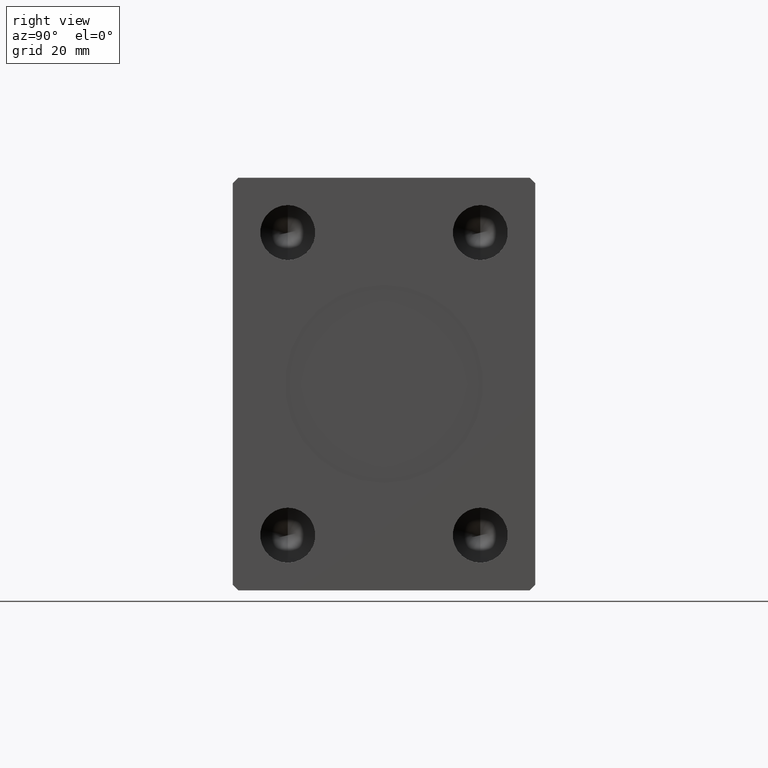
[diagram: clean part render]
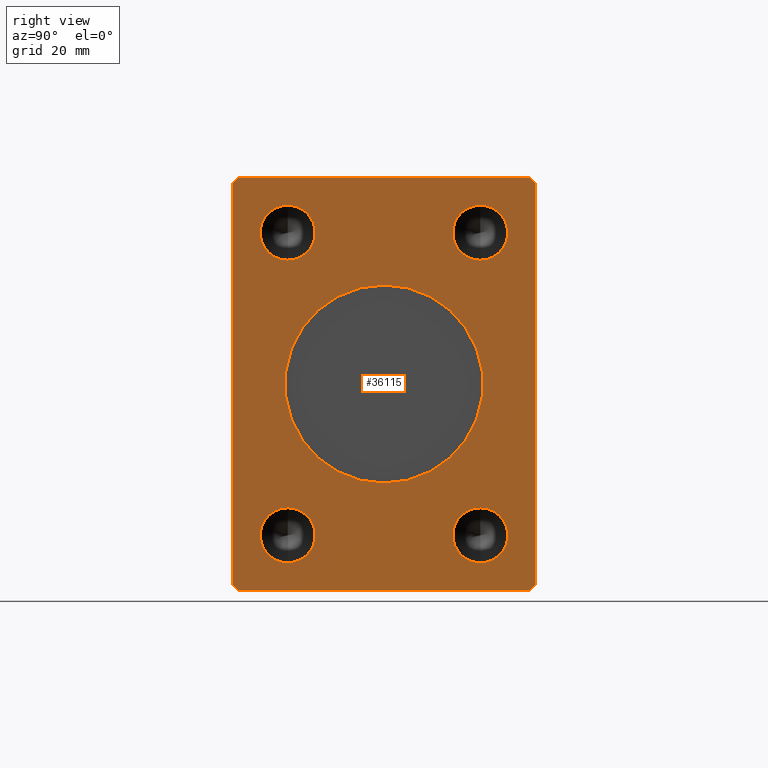
[diagram: same view with one face highlighted and labeled with its STEP entity id]
A machine part, right view. The second image highlights one B-rep face of the part: STEP entity #36115.
In plain terms, the highlighted planar face has unit normal (1, 0, 0).
Its self-contained STEP definition (entity closure, byte-faithful):
#16 = EDGE_CURVE ( 'NONE', #37858, #38289, #7254, .T. ) ;
#370 = VERTEX_POINT ( 'NONE', #2576 ) ;
#374 = CARTESIAN_POINT ( 'NONE',  ( 85.00000000000000000, -27.50000000000000355, -36.49999999999998579 ) ) ;
#713 = CARTESIAN_POINT ( 'NONE',  ( 85.00000000000000000, 26.50000000000000355, 37.50000000000000711 ) ) ;
#765 = DIRECTION ( 'NONE',  ( 0.000000000000000000, 0.7071067811865474617, 0.7071067811865474617 ) ) ;
#881 = AXIS2_PLACEMENT_3D ( 'NONE', #26466, #9509, #6167 ) ;
#988 = CARTESIAN_POINT ( 'NONE',  ( 85.00000000000000000, 17.50000000000000000, 32.50000000000000000 ) ) ;
#1284 = CARTESIAN_POINT ( 'NONE',  ( 85.00000000000000000, 26.50000000000000711, -37.49999999999999289 ) ) ;
#1599 = AXIS2_PLACEMENT_3D ( 'NONE', #33057, #38733, #21731 ) ;
#2338 = EDGE_CURVE ( 'NONE', #36524, #21167, #36487, .T. ) ;
#2526 = VERTEX_POINT ( 'NONE', #39345 ) ;
#2553 = FACE_BOUND ( 'NONE', #41140, .T. ) ;
#2567 = DIRECTION ( 'NONE',  ( 0.000000000000000000, 1.000000000000000000, 0.000000000000000000 ) ) ;
#2576 = CARTESIAN_POINT ( 'NONE',  ( 85.00000000000000000, -17.50000000000000000, -22.50000000000000000 ) ) ;
#2974 = EDGE_LOOP ( 'NONE', ( #6650, #42968 ) ) ;
#3344 = AXIS2_PLACEMENT_3D ( 'NONE', #35683, #39248, #42595 ) ;
#3708 = EDGE_CURVE ( 'NONE', #21167, #36524, #40073, .T. ) ;
#3836 = VECTOR ( 'NONE', #38309, 1000.000000000000114 ) ;
#4011 = DIRECTION ( 'NONE',  ( 0.000000000000000000, 0.000000000000000000, -1.000000000000000000 ) ) ;
#4060 = EDGE_CURVE ( 'NONE', #39470, #370, #35826, .T. ) ;
#4086 = ORIENTED_EDGE ( 'NONE', *, *, #16824, .T. ) ;
#4472 = AXIS2_PLACEMENT_3D ( 'NONE', #43001, #4850, #36092 ) ;
#4636 = CARTESIAN_POINT ( 'NONE',  ( 85.00000000000000000, -26.50000000000000711, 37.50000000000000711 ) ) ;
#4850 = DIRECTION ( 'NONE',  ( 1.000000000000000000, -0.000000000000000000, -0.000000000000000000 ) ) ;
#5529 = CARTESIAN_POINT ( 'NONE',  ( 85.00000000000000000, 17.50000000000000000, 27.50000000000000000 ) ) ;
#5691 = LINE ( 'NONE', #5923, #10064 ) ;
#5736 = CARTESIAN_POINT ( 'NONE',  ( 85.00000000000000000, 27.50000000000000355, 36.50000000000000711 ) ) ;
#5864 = EDGE_CURVE ( 'NONE', #18019, #27338, #22128, .T. ) ;
#5923 = CARTESIAN_POINT ( 'NONE',  ( 85.00000000000000000, -26.50000000000000355, -37.49999999999999289 ) ) ;
#5966 = VERTEX_POINT ( 'NONE', #40207 ) ;
#6167 = DIRECTION ( 'NONE',  ( 0.000000000000000000, 0.000000000000000000, -1.000000000000000000 ) ) ;
#6650 = ORIENTED_EDGE ( 'NONE', *, *, #25589, .F. ) ;
#6737 = DIRECTION ( 'NONE',  ( 0.000000000000000000, 0.000000000000000000, -1.000000000000000000 ) ) ;
#7206 = AXIS2_PLACEMENT_3D ( 'NONE', #37445, #31988, #15014 ) ;
#7233 = ORIENTED_EDGE ( 'NONE', *, *, #12309, .T. ) ;
#7254 = CIRCLE ( 'NONE', #32907, 18.00000000000000000 ) ;
#7571 = VECTOR ( 'NONE', #7580, 1000.000000000000000 ) ;
#7580 = DIRECTION ( 'NONE',  ( 0.000000000000000000, 4.752667057470705491E-17, -1.000000000000000000 ) ) ;
#7994 = EDGE_CURVE ( 'NONE', #2526, #12995, #31496, .T. ) ;
#8095 = CARTESIAN_POINT ( 'NONE',  ( 85.00000000000000000, -17.50000000000000000, -27.49999999999999645 ) ) ;
#8520 = DIRECTION ( 'NONE',  ( 1.000000000000000000, -0.000000000000000000, -0.000000000000000000 ) ) ;
#8840 = VERTEX_POINT ( 'NONE', #5736 ) ;
#9110 = ORIENTED_EDGE ( 'NONE', *, *, #10935, .T. ) ;
#9172 = CARTESIAN_POINT ( 'NONE',  ( 85.00000000000000000, -17.50000000000000000, 22.50000000000000711 ) ) ;
#9328 = EDGE_CURVE ( 'NONE', #28725, #17142, #37830, .T. ) ;
#9509 = DIRECTION ( 'NONE',  ( 1.000000000000000000, -0.000000000000000000, -0.000000000000000000 ) ) ;
#9710 = DIRECTION ( 'NONE',  ( 1.000000000000000000, -0.000000000000000000, -0.000000000000000000 ) ) ;
#9722 = EDGE_CURVE ( 'NONE', #17080, #39507, #33549, .T. ) ;
#10064 = VECTOR ( 'NONE', #2567, 1000.000000000000000 ) ;
#10935 = EDGE_CURVE ( 'NONE', #27338, #28725, #5691, .T. ) ;
#12309 = EDGE_CURVE ( 'NONE', #12995, #34916, #26782, .T. ) ;
#12325 = CARTESIAN_POINT ( 'NONE',  ( 85.00000000000000000, 27.50000000000000711, -36.49999999999999289 ) ) ;
#12995 = VERTEX_POINT ( 'NONE', #4636 ) ;
#13019 = FACE_OUTER_BOUND ( 'NONE', #15903, .T. ) ;
#14102 = ORIENTED_EDGE ( 'NONE', *, *, #39526, .F. ) ;
#14266 = VECTOR ( 'NONE', #20293, 1000.000000000000114 ) ;
#14302 = AXIS2_PLACEMENT_3D ( 'NONE', #5529, #36340, #35908 ) ;
#14555 = DIRECTION ( 'NONE',  ( 0.000000000000000000, 0.000000000000000000, -1.000000000000000000 ) ) ;
#15014 = DIRECTION ( 'NONE',  ( 0.000000000000000000, 0.000000000000000000, -1.000000000000000000 ) ) ;
#15330 = EDGE_CURVE ( 'NONE', #8840, #2526, #42963, .T. ) ;
#15730 = AXIS2_PLACEMENT_3D ( 'NONE', #34382, #34593, #4011 ) ;
#15903 = EDGE_LOOP ( 'NONE', ( #35499, #39711, #7233, #4086, #36576, #9110, #23129, #19560 ) ) ;
#16117 = EDGE_CURVE ( 'NONE', #5966, #37066, #28888, .T. ) ;
#16566 = ORIENTED_EDGE ( 'NONE', *, *, #40637, .F. ) ;
#16665 = CARTESIAN_POINT ( 'NONE',  ( 85.00000000000000000, 17.50000000000000000, 22.50000000000000355 ) ) ;
#16824 = EDGE_CURVE ( 'NONE', #34916, #18019, #22033, .T. ) ;
#17080 = VERTEX_POINT ( 'NONE', #16665 ) ;
#17142 = VERTEX_POINT ( 'NONE', #27375 ) ;
#18019 = VERTEX_POINT ( 'NONE', #37842 ) ;
#19274 = FACE_BOUND ( 'NONE', #31231, .T. ) ;
#19560 = ORIENTED_EDGE ( 'NONE', *, *, #31361, .T. ) ;
#19678 = EDGE_LOOP ( 'NONE', ( #22114, #14102 ) ) ;
#19731 = CARTESIAN_POINT ( 'NONE',  ( 85.00000000000000000, -17.50000000000000000, 27.50000000000000355 ) ) ;
#20293 = DIRECTION ( 'NONE',  ( 0.000000000000000000, -0.7071067811865474617, -0.7071067811865474617 ) ) ;
#20834 = CARTESIAN_POINT ( 'NONE',  ( 85.00000000000000000, 26.50000000000000711, -37.49999999999999289 ) ) ;
#21159 = CARTESIAN_POINT ( 'NONE',  ( 85.00000000000000000, -27.50000000000000711, 36.50000000000000711 ) ) ;
#21167 = VERTEX_POINT ( 'NONE', #42584 ) ;
#21731 = DIRECTION ( 'NONE',  ( 0.000000000000000000, 0.000000000000000000, -1.000000000000000000 ) ) ;
#22033 = LINE ( 'NONE', #21159, #7571 ) ;
#22114 = ORIENTED_EDGE ( 'NONE', *, *, #9722, .F. ) ;
#22128 = LINE ( 'NONE', #374, #3836 ) ;
#22623 = DIRECTION ( 'NONE',  ( 0.000000000000000000, 0.000000000000000000, -1.000000000000000000 ) ) ;
#23129 = ORIENTED_EDGE ( 'NONE', *, *, #9328, .T. ) ;
#23311 = DIRECTION ( 'NONE',  ( 0.000000000000000000, 0.000000000000000000, -1.000000000000000000 ) ) ;
#23377 = EDGE_LOOP ( 'NONE', ( #33661, #33406 ) ) ;
#23722 = ORIENTED_EDGE ( 'NONE', *, *, #3708, .F. ) ;
#24324 = CIRCLE ( 'NONE', #15730, 4.999999999999997335 ) ;
#24581 = VECTOR ( 'NONE', #28891, 1000.000000000000114 ) ;
#24712 = CIRCLE ( 'NONE', #3344, 18.00000000000000000 ) ;
#25589 = EDGE_CURVE ( 'NONE', #38289, #37858, #24712, .T. ) ;
#26366 = VECTOR ( 'NONE', #27921, 1000.000000000000000 ) ;
#26466 = CARTESIAN_POINT ( 'NONE',  ( 85.00000000000000000, 17.50000000000000000, -27.49999999999999289 ) ) ;
#26503 = ORIENTED_EDGE ( 'NONE', *, *, #2338, .F. ) ;
#26592 = CARTESIAN_POINT ( 'NONE',  ( 85.00000000000000000, 17.50000000000000000, -22.49999999999999645 ) ) ;
#26782 = LINE ( 'NONE', #39973, #14266 ) ;
#26931 = CIRCLE ( 'NONE', #28371, 4.999999999999997335 ) ;
#27129 = CIRCLE ( 'NONE', #7206, 4.999999999999997335 ) ;
#27338 = VERTEX_POINT ( 'NONE', #32290 ) ;
#27375 = CARTESIAN_POINT ( 'NONE',  ( 85.00000000000000000, 27.50000000000000711, -36.49999999999999289 ) ) ;
#27921 = DIRECTION ( 'NONE',  ( 0.000000000000000000, -1.000000000000000000, 0.000000000000000000 ) ) ;
#28371 = AXIS2_PLACEMENT_3D ( 'NONE', #8095, #8520, #14555 ) ;
#28725 = VERTEX_POINT ( 'NONE', #1284 ) ;
#28888 = CIRCLE ( 'NONE', #38880, 4.999999999999997335 ) ;
#28891 = DIRECTION ( 'NONE',  ( 0.000000000000000000, -0.7071067811865474617, 0.7071067811865474617 ) ) ;
#29132 = EDGE_CURVE ( 'NONE', #370, #39470, #26931, .T. ) ;
#29340 = CARTESIAN_POINT ( 'NONE',  ( 85.00000000000000000, 0.000000000000000000, 0.000000000000000000 ) ) ;
#29710 = CARTESIAN_POINT ( 'NONE',  ( 85.00000000000000000, 0.000000000000000000, 0.000000000000000000 ) ) ;
#31231 = EDGE_LOOP ( 'NONE', ( #23722, #26503 ) ) ;
#31361 = EDGE_CURVE ( 'NONE', #17142, #8840, #42259, .T. ) ;
#31496 = LINE ( 'NONE', #713, #26366 ) ;
#31988 = DIRECTION ( 'NONE',  ( 1.000000000000000000, -0.000000000000000000, -0.000000000000000000 ) ) ;
#32290 = CARTESIAN_POINT ( 'NONE',  ( 85.00000000000000000, -26.50000000000000355, -37.49999999999999289 ) ) ;
#32481 = DIRECTION ( 'NONE',  ( 1.000000000000000000, 0.000000000000000000, 0.000000000000000000 ) ) ;
#32691 = FACE_BOUND ( 'NONE', #2974, .T. ) ;
#32907 = AXIS2_PLACEMENT_3D ( 'NONE', #29710, #36432, #6737 ) ;
#33057 = CARTESIAN_POINT ( 'NONE',  ( 85.00000000000000000, -17.50000000000000000, -27.49999999999999645 ) ) ;
#33082 = DIRECTION ( 'NONE',  ( 0.000000000000000000, -4.752667057470704875E-17, 1.000000000000000000 ) ) ;
#33130 = FACE_BOUND ( 'NONE', #19678, .T. ) ;
#33406 = ORIENTED_EDGE ( 'NONE', *, *, #29132, .F. ) ;
#33442 = VECTOR ( 'NONE', #33082, 1000.000000000000000 ) ;
#33549 = CIRCLE ( 'NONE', #14302, 4.999999999999997335 ) ;
#33661 = ORIENTED_EDGE ( 'NONE', *, *, #4060, .F. ) ;
#34309 = CARTESIAN_POINT ( 'NONE',  ( 85.00000000000000000, -27.50000000000000711, 36.50000000000000711 ) ) ;
#34382 = CARTESIAN_POINT ( 'NONE',  ( 85.00000000000000000, -17.50000000000000000, 27.50000000000000355 ) ) ;
#34593 = DIRECTION ( 'NONE',  ( 1.000000000000000000, -0.000000000000000000, -0.000000000000000000 ) ) ;
#34600 = ORIENTED_EDGE ( 'NONE', *, *, #16117, .F. ) ;
#34916 = VERTEX_POINT ( 'NONE', #34309 ) ;
#35499 = ORIENTED_EDGE ( 'NONE', *, *, #15330, .T. ) ;
#35683 = CARTESIAN_POINT ( 'NONE',  ( 85.00000000000000000, 0.000000000000000000, 0.000000000000000000 ) ) ;
#35826 = CIRCLE ( 'NONE', #1599, 4.999999999999997335 ) ;
#35908 = DIRECTION ( 'NONE',  ( 0.000000000000000000, 0.000000000000000000, -1.000000000000000000 ) ) ;
#36092 = DIRECTION ( 'NONE',  ( 0.000000000000000000, 0.000000000000000000, -1.000000000000000000 ) ) ;
#36115 = ADVANCED_FACE ( 'NONE', ( #32691, #33130, #43629, #19274, #2553, #13019 ), #39182, .T. ) ;
#36340 = DIRECTION ( 'NONE',  ( 1.000000000000000000, -0.000000000000000000, -0.000000000000000000 ) ) ;
#36432 = DIRECTION ( 'NONE',  ( 1.000000000000000000, 0.000000000000000000, 0.000000000000000000 ) ) ;
#36487 = CIRCLE ( 'NONE', #881, 4.999999999999993783 ) ;
#36524 = VERTEX_POINT ( 'NONE', #26592 ) ;
#36576 = ORIENTED_EDGE ( 'NONE', *, *, #5864, .T. ) ;
#37066 = VERTEX_POINT ( 'NONE', #9172 ) ;
#37445 = CARTESIAN_POINT ( 'NONE',  ( 85.00000000000000000, 17.50000000000000000, 27.50000000000000000 ) ) ;
#37830 = LINE ( 'NONE', #20834, #41406 ) ;
#37842 = CARTESIAN_POINT ( 'NONE',  ( 85.00000000000000000, -27.50000000000000355, -36.49999999999998579 ) ) ;
#37858 = VERTEX_POINT ( 'NONE', #42685 ) ;
#38289 = VERTEX_POINT ( 'NONE', #43512 ) ;
#38309 = DIRECTION ( 'NONE',  ( 0.000000000000000000, 0.7071067811865451302, -0.7071067811865500152 ) ) ;
#38733 = DIRECTION ( 'NONE',  ( 1.000000000000000000, -0.000000000000000000, -0.000000000000000000 ) ) ;
#38880 = AXIS2_PLACEMENT_3D ( 'NONE', #19731, #9710, #23311 ) ;
#39177 = AXIS2_PLACEMENT_3D ( 'NONE', #29340, #32481, #22623 ) ;
#39182 = PLANE ( 'NONE',  #39177 ) ;
#39248 = DIRECTION ( 'NONE',  ( 1.000000000000000000, 0.000000000000000000, 0.000000000000000000 ) ) ;
#39345 = CARTESIAN_POINT ( 'NONE',  ( 85.00000000000000000, 26.50000000000000355, 37.50000000000000711 ) ) ;
#39470 = VERTEX_POINT ( 'NONE', #42264 ) ;
#39507 = VERTEX_POINT ( 'NONE', #988 ) ;
#39526 = EDGE_CURVE ( 'NONE', #39507, #17080, #27129, .T. ) ;
#39711 = ORIENTED_EDGE ( 'NONE', *, *, #7994, .T. ) ;
#39973 = CARTESIAN_POINT ( 'NONE',  ( 85.00000000000000000, -26.50000000000000711, 37.50000000000000711 ) ) ;
#40073 = CIRCLE ( 'NONE', #4472, 4.999999999999993783 ) ;
#40207 = CARTESIAN_POINT ( 'NONE',  ( 85.00000000000000000, -17.50000000000000000, 32.50000000000000000 ) ) ;
#40637 = EDGE_CURVE ( 'NONE', #37066, #5966, #24324, .T. ) ;
#41140 = EDGE_LOOP ( 'NONE', ( #16566, #34600 ) ) ;
#41406 = VECTOR ( 'NONE', #765, 1000.000000000000114 ) ;
#42259 = LINE ( 'NONE', #12325, #33442 ) ;
#42264 = CARTESIAN_POINT ( 'NONE',  ( 85.00000000000000000, -17.50000000000000000, -32.49999999999999289 ) ) ;
#42584 = CARTESIAN_POINT ( 'NONE',  ( 85.00000000000000000, 17.50000000000000000, -32.49999999999998579 ) ) ;
#42595 = DIRECTION ( 'NONE',  ( 0.000000000000000000, 0.000000000000000000, -1.000000000000000000 ) ) ;
#42685 = CARTESIAN_POINT ( 'NONE',  ( 85.00000000000000000, 2.204364238465235428E-15, 18.00000000000000000 ) ) ;
#42963 = LINE ( 'NONE', #43180, #24581 ) ;
#42968 = ORIENTED_EDGE ( 'NONE', *, *, #16, .F. ) ;
#43001 = CARTESIAN_POINT ( 'NONE',  ( 85.00000000000000000, 17.50000000000000000, -27.49999999999999289 ) ) ;
#43180 = CARTESIAN_POINT ( 'NONE',  ( 85.00000000000000000, 27.50000000000000355, 36.50000000000000711 ) ) ;
#43512 = CARTESIAN_POINT ( 'NONE',  ( 85.00000000000000000, 0.000000000000000000, -18.00000000000000000 ) ) ;
#43629 = FACE_BOUND ( 'NONE', #23377, .T. ) ;